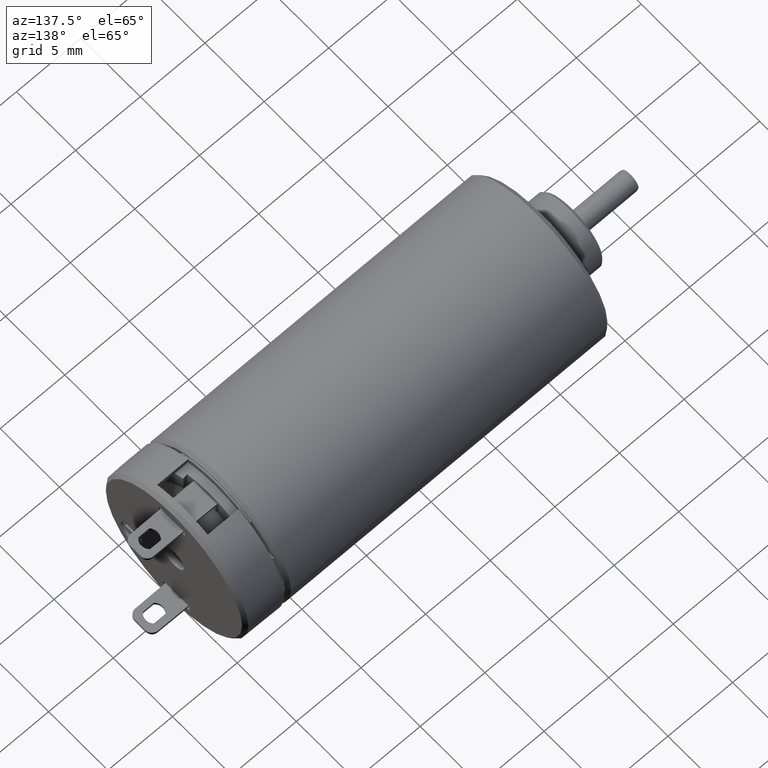
[diagram: clean part render]
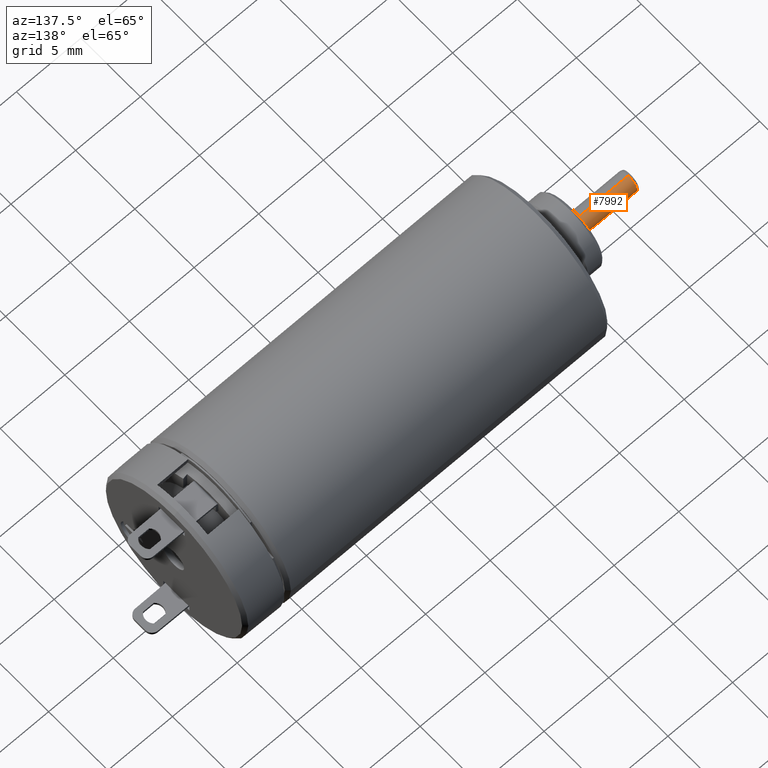
[diagram: same view with one face highlighted and labeled with its STEP entity id]
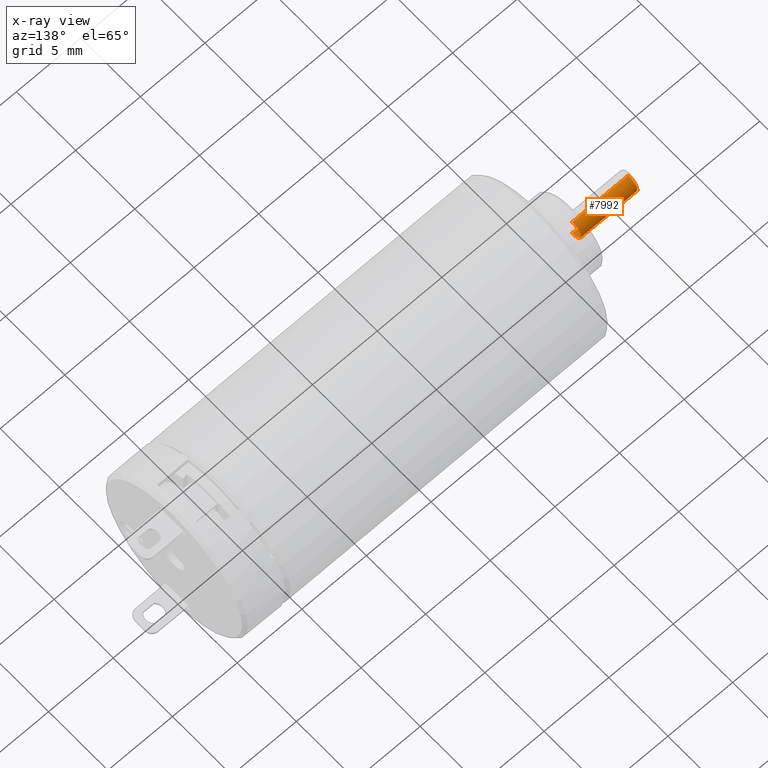
[diagram: x-ray of the same camera — body ghosted, the highlighted face saturated]
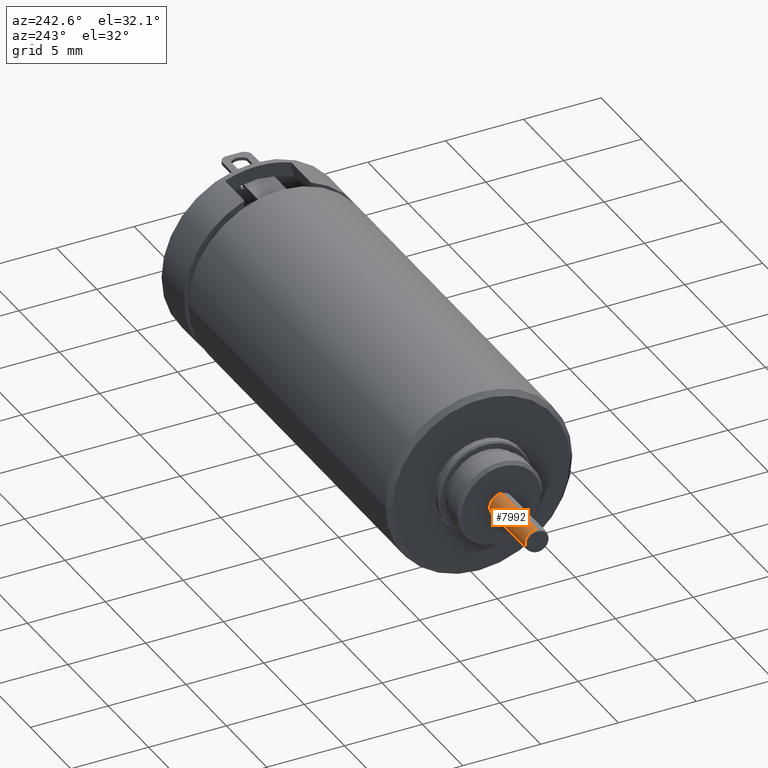
[diagram: same view with one face highlighted and labeled with its STEP entity id]
A machine part, auxiliary view. The second image highlights one B-rep face of the part: STEP entity #7992.
The next image is the same camera in x-ray: the body ghosted, the highlighted face saturated — about 0% of this face is hidden behind the body in this view.
A second angle (auxiliary view) of the same face is appended — the face is thin or edge-on in the first view.
In plain terms, the highlighted cylindrical surface (edge-blend (fillet) strip) has radius 0.75 mm, axis along (-1, 0, 0).
Its self-contained STEP definition (entity closure, byte-faithful):
#3277=CARTESIAN_POINT('',(-1.05E1,0.E0,0.E0));
#3278=DIRECTION('',(-1.E0,0.E0,0.E0));
#3279=DIRECTION('',(0.E0,-2.060573933704E-13,1.E0));
#3280=AXIS2_PLACEMENT_3D('',#3277,#3278,#3279);
#3309=CARTESIAN_POINT('',(-1.484998009328E1,0.E0,0.E0));
#3310=DIRECTION('',(-1.E0,0.E0,0.E0));
#3311=DIRECTION('',(0.E0,-2.060573907056E-13,1.E0));
#3312=AXIS2_PLACEMENT_3D('',#3309,#3310,#3311);
#3314=DIRECTION('',(-9.999999999939E-1,3.512169302123E-9,3.496963635848E-6));
#3315=VECTOR('',#3314,4.350005538479E0);
#3316=CARTESIAN_POINT('',(-1.05E1,-1.545430470501E-13,7.5E-1));
#3317=LINE('',#3316,#3315);
#3341=DIRECTION('',(-9.999999999939E-1,-3.512169277731E-9,-3.496963635772E-6));
#3342=VECTOR('',#3341,4.350005538479E0);
#3343=CARTESIAN_POINT('',(-1.05E1,1.545430470501E-13,-7.5E-1));
#3344=LINE('',#3343,#3342);
#3927=CARTESIAN_POINT('',(-1.05E1,-1.545430450278E-13,7.5E-1));
#3928=CARTESIAN_POINT('',(-1.05E1,1.546348935378E-13,-7.5E-1));
#3929=VERTEX_POINT('',#3927);
#3930=VERTEX_POINT('',#3928);
#3935=CARTESIAN_POINT('',(-1.484998009328E1,1.545430480612E-13,-7.5E-1));
#3936=CARTESIAN_POINT('',(-1.484998009328E1,-1.546348965712E-13,7.5E-1));
#3937=VERTEX_POINT('',#3935);
#3938=VERTEX_POINT('',#3936);
#7978=CARTESIAN_POINT('',(-1.05E1,0.E0,0.E0));
#7979=DIRECTION('',(-1.E0,0.E0,0.E0));
#7980=DIRECTION('',(0.E0,-2.059349327350E-13,1.E0));
#7981=AXIS2_PLACEMENT_3D('',#7978,#7979,#7980);
#7982=CYLINDRICAL_SURFACE('',#7981,7.5E-1);
#7984=ORIENTED_EDGE('',*,*,#7983,.T.);
#7986=ORIENTED_EDGE('',*,*,#7985,.F.);
#7987=ORIENTED_EDGE('',*,*,#7946,.F.);
#7989=ORIENTED_EDGE('',*,*,#7988,.T.);
#7990=EDGE_LOOP('',(#7984,#7986,#7987,#7989));
#7991=FACE_OUTER_BOUND('',#7990,.F.);
#7992=ADVANCED_FACE('',(#7991),#7982,.T.);
#3281=CIRCLE('',#3280,7.5E-1);
#3313=CIRCLE('',#3312,7.5E-1);
#7946=EDGE_CURVE('',#3929,#3930,#3281,.T.);
#7983=EDGE_CURVE('',#3938,#3937,#3313,.T.);
#7985=EDGE_CURVE('',#3930,#3937,#3344,.T.);
#7988=EDGE_CURVE('',#3929,#3938,#3317,.T.);